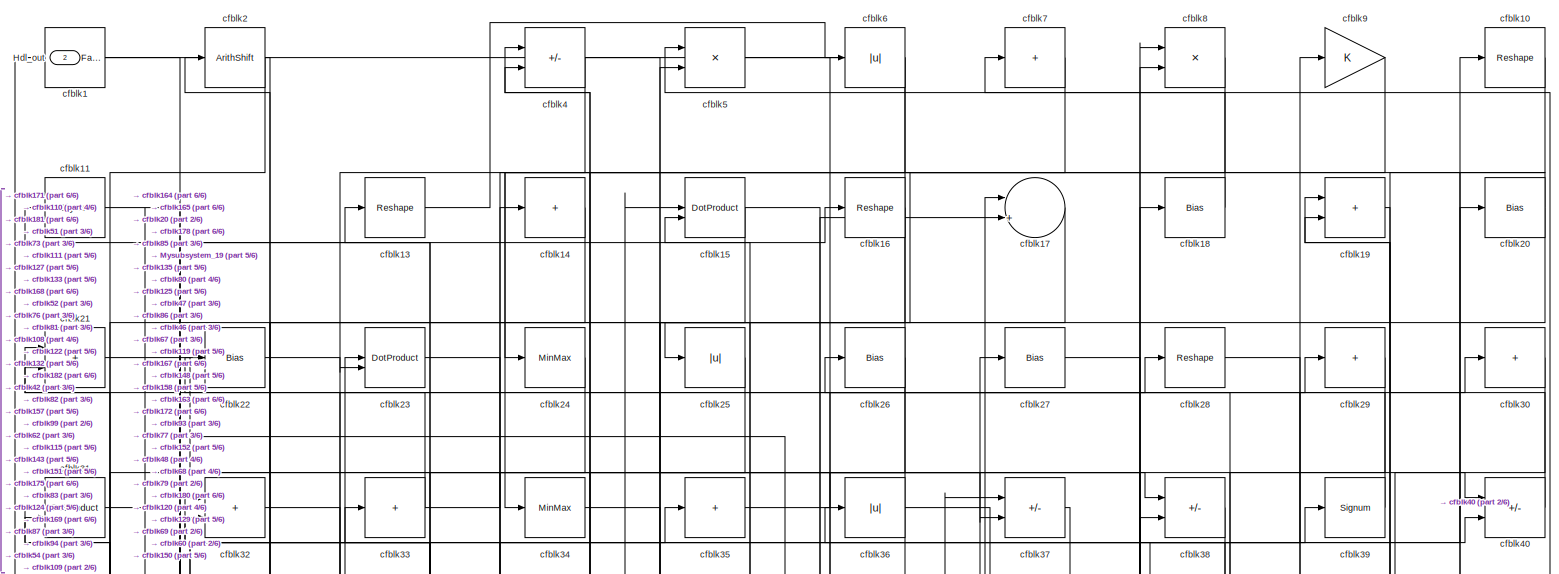
[diagram: root canvas - part 1/6, full width, top band]
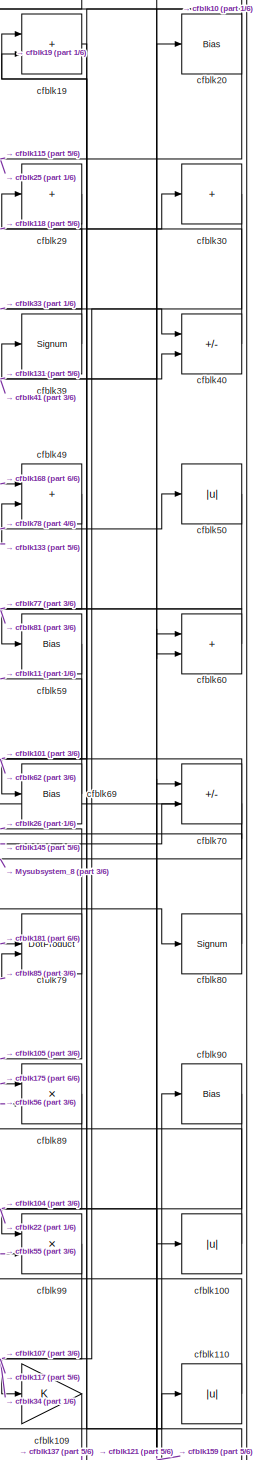
[diagram: root canvas - part 2/6, top right region]
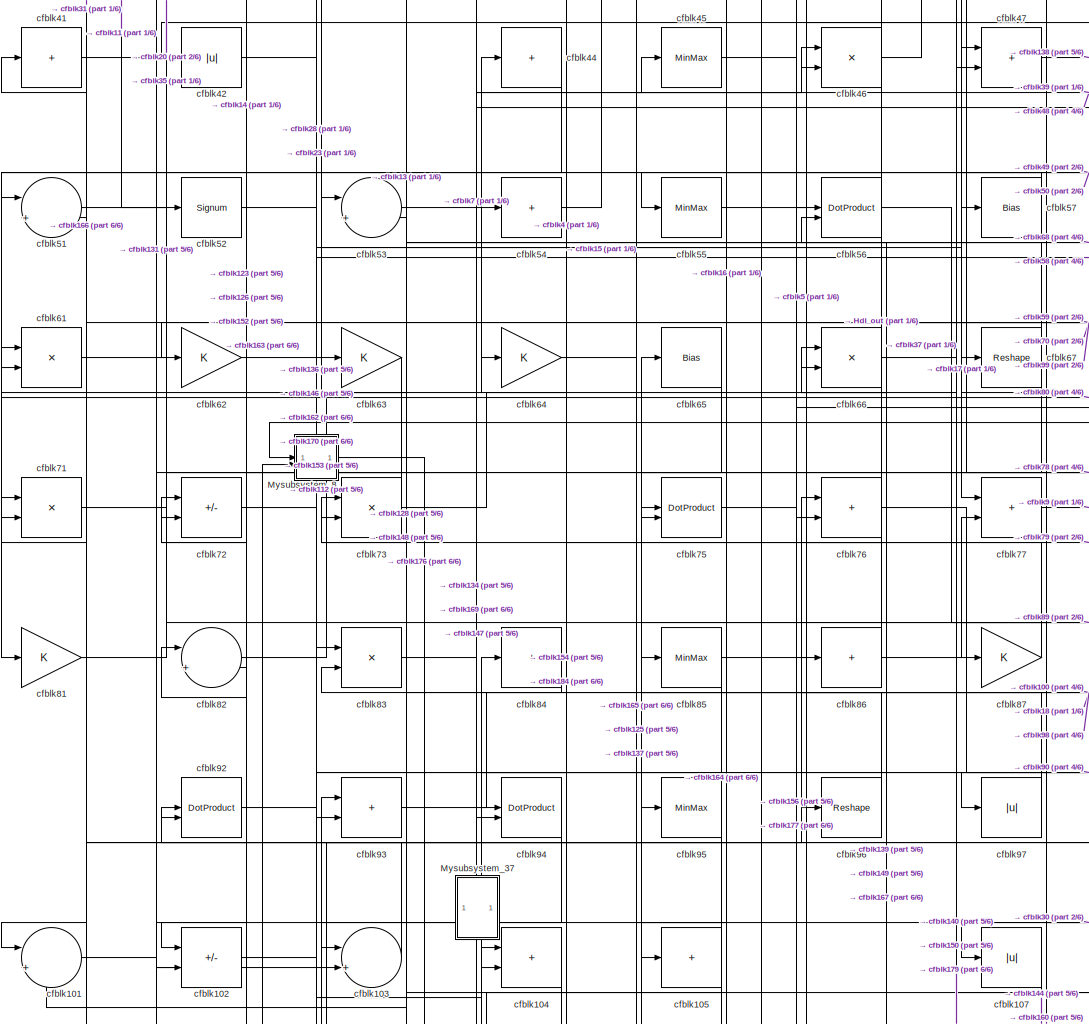
[diagram: root canvas - part 3/6, central region]
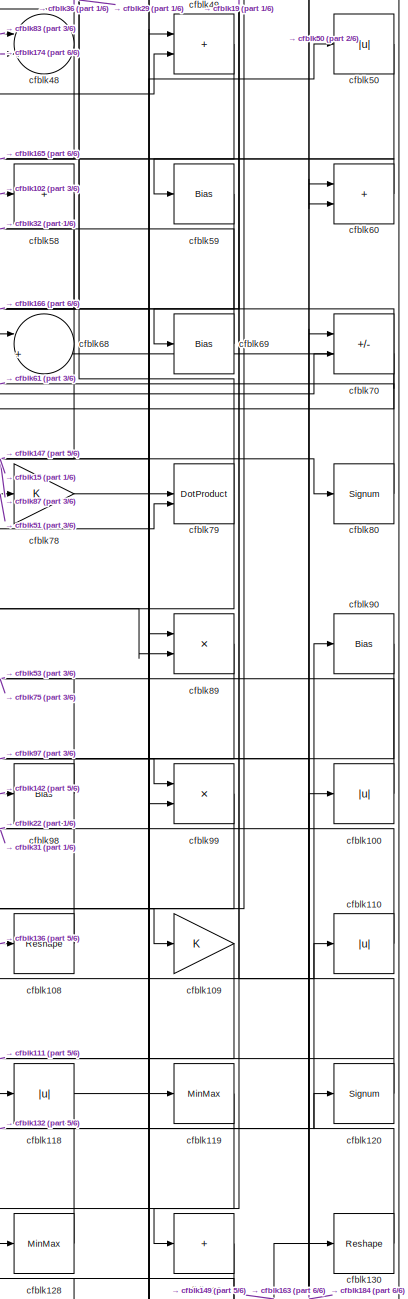
[diagram: root canvas - part 4/6, middle right region]
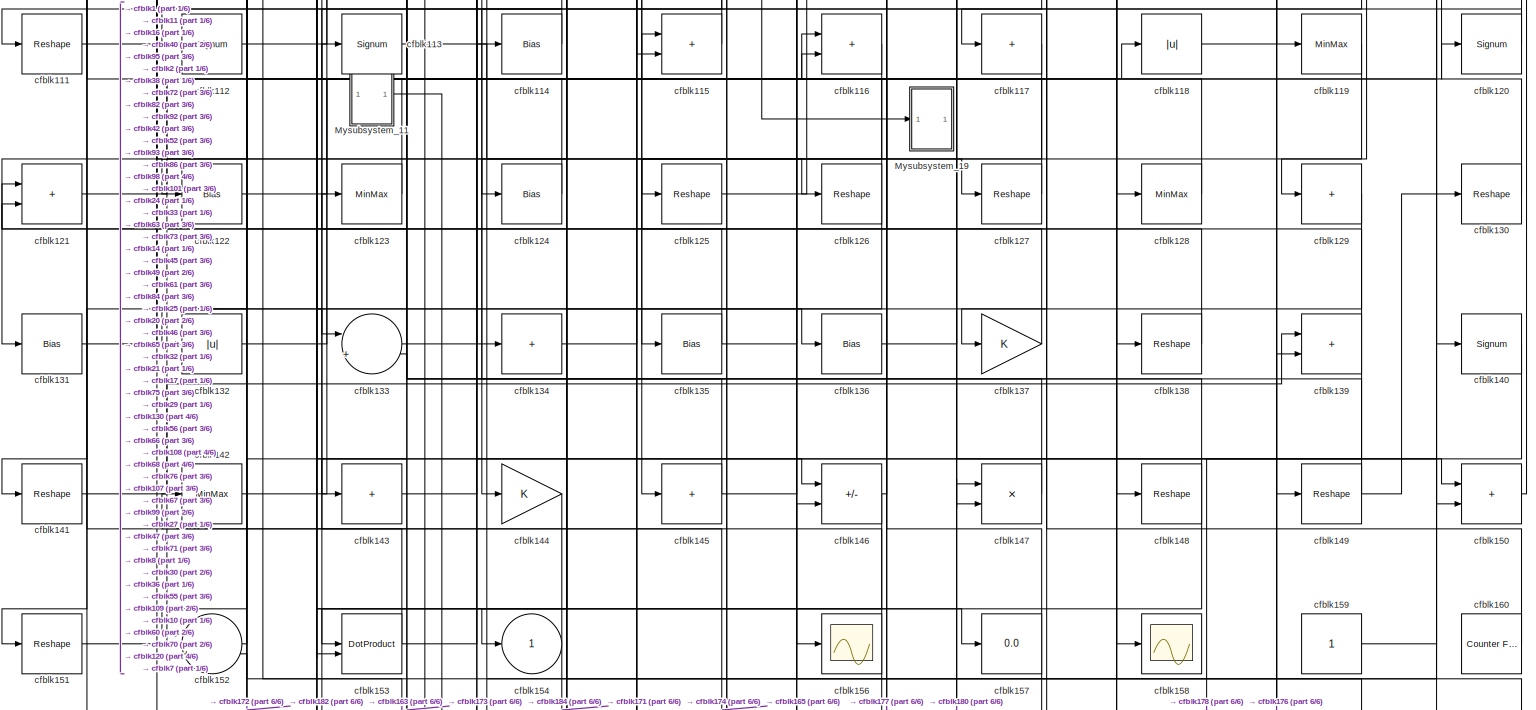
[diagram: root canvas - part 5/6, full width, bottom band]
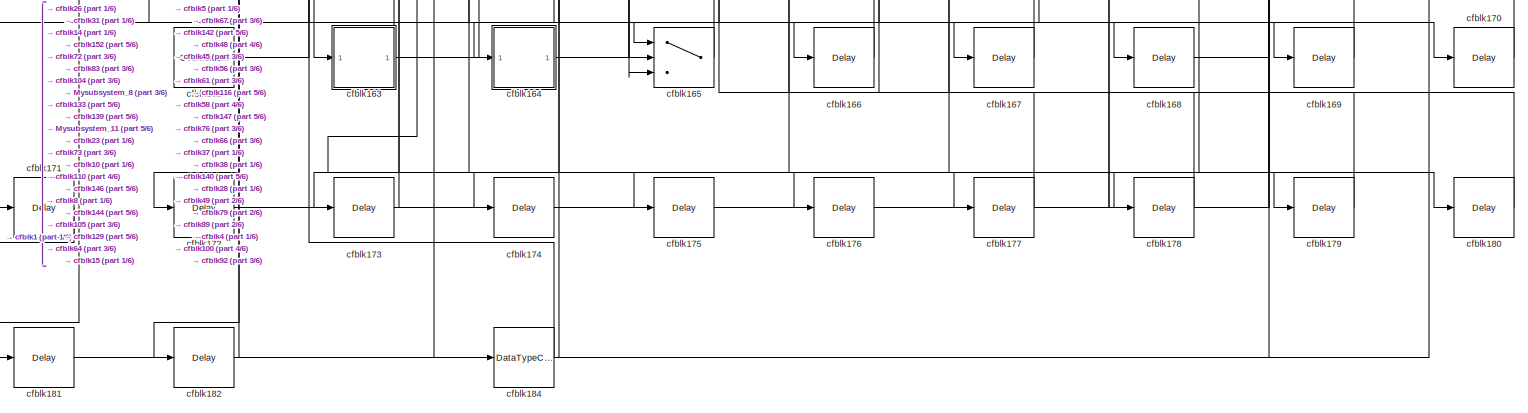
[diagram: root canvas - part 6/6, full width, bottom band]
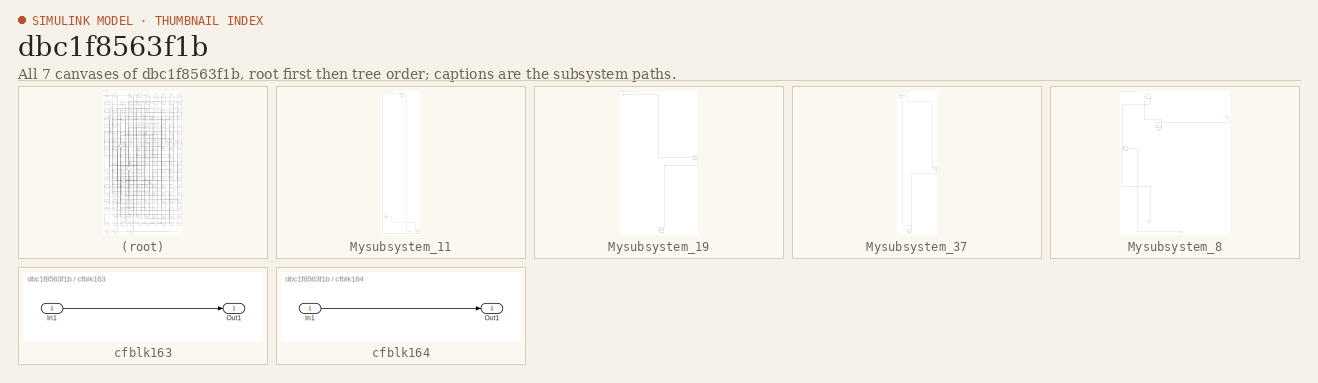
[diagram: thumbnail index - all 7 canvases of the model, root first then tree order]
MODEL slx_dbc1f8563f1b
KIND model
CONFIG AbsTol = auto
CONFIG EnableMultiTasking = off
CONFIG FixedStep = auto
CONFIG MaxStep = auto
CONFIG MinStep = auto
CONFIG RelTol = 1e-3
CONFIG SampleTimeConstraint = Unconstrained
CONFIG SolverName = VariableStepAuto
CONFIG StartTime = 0.0
CONFIG StopTime = 10.0
BLOCK [Outport] Hdl_out
  OutDataTypeStr = uint8
  Port = 2
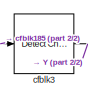
[diagram: Mysubsystem_11 - part 1/2, top center region]
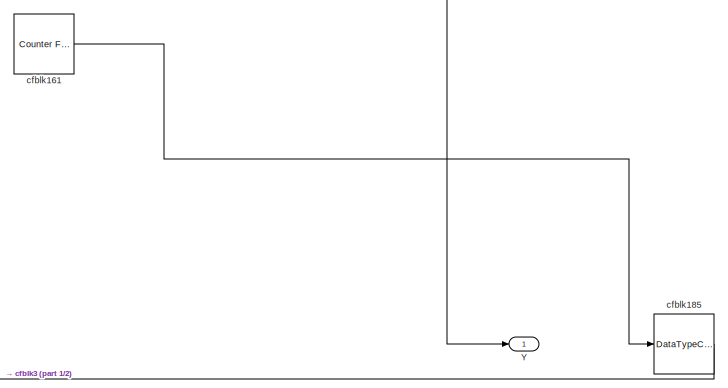
[diagram: Mysubsystem_11 - part 2/2, full width, bottom band]
BLOCK [SubSystem] Mysubsystem_11
  RTWFcnName = Mysubsystem_11
  RTWFcnNameOpts = User specified
  RTWFileNameOpts = Use function name
  RTWSystemCode = Reusable function
  TreatAsAtomicUnit = on
BLOCK [Outport] Mysubsystem_11/Y
BLOCK [Reference] Mysubsystem_11/cfblk161  REF=hdlsllib/Sources/Counter
Free-Running
  SourceBlock = hdlsllib/Sources/Counter\nFree-Running
  SourceType = Counter Free-Running
BLOCK [DataTypeConversion] Mysubsystem_11/cfblk185
  OutDataTypeStr = uint8
  RndMeth = Floor
  SaturateOnIntegerOverflow = off
BLOCK [Reference] Mysubsystem_11/cfblk3  REF=simulink/Logic and Bit
Operations/Detect
Change
  LibrarySourceBlock = hdlsllib/Logic and Bit\nOperations/Detect\nChange
  SourceBlock = simulink/Logic and Bit\nOperations/Detect\nChange
  SourceType = Detect Change
BLOCK [SubSystem] Mysubsystem_19
  RTWFcnName = Mysubsystem_19
  RTWFcnNameOpts = User specified
  RTWFileNameOpts = Use function name
  RTWSystemCode = Reusable function
  TreatAsAtomicUnit = on
BLOCK [Inport] Mysubsystem_19/In1
BLOCK [ToWorkspace] Mysubsystem_19/cfblk155
  MaxDataPoints = inf
  SampleTime = -1
  SaveFormat = Timeseries
  VariableName = simout
BLOCK [MinMax] Mysubsystem_19/cfblk88
BLOCK [SubSystem] Mysubsystem_37
  RTWFcnName = Mysubsystem_37
  RTWFcnNameOpts = User specified
  RTWFileNameOpts = Use function name
  RTWSystemCode = Reusable function
  TreatAsAtomicUnit = on
BLOCK [Signum] Mysubsystem_37/cfblk106
BLOCK [Signum] Mysubsystem_37/cfblk12
BLOCK [Delay] Mysubsystem_37/cfblk183
  InputPortMap = u0
  SampleTime = 1
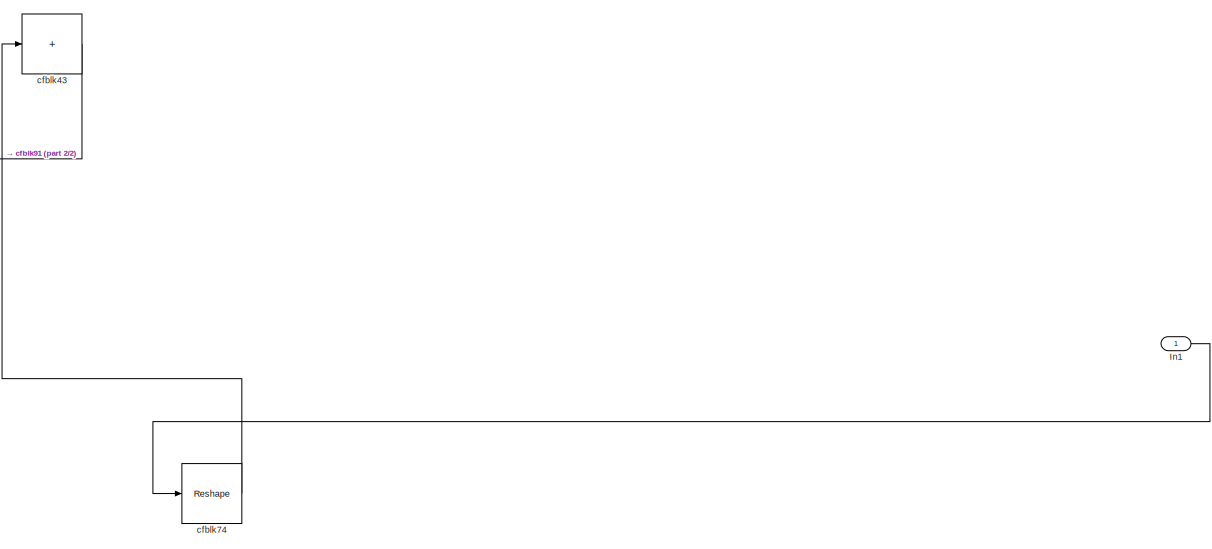
[diagram: Mysubsystem_8 - part 1/2, full width, top band]
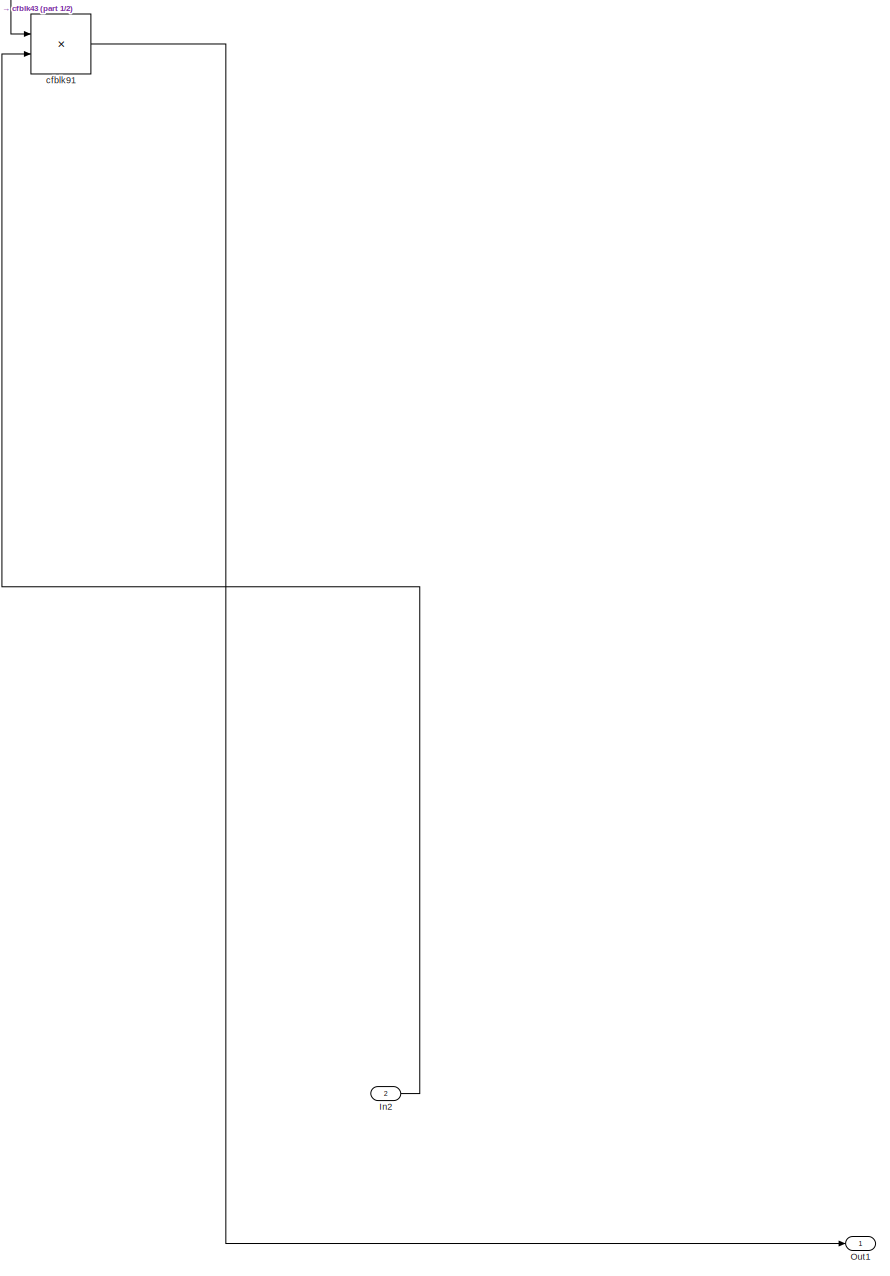
[diagram: Mysubsystem_8 - part 2/2, bottom left region]
BLOCK [SubSystem] Mysubsystem_8
  RTWFcnName = Mysubsystem_8
  RTWFcnNameOpts = User specified
  RTWFileNameOpts = Use function name
  RTWSystemCode = Reusable function
  TreatAsAtomicUnit = on
BLOCK [Inport] Mysubsystem_8/In1
BLOCK [Inport] Mysubsystem_8/In2
  Port = 2
BLOCK [Outport] Mysubsystem_8/Out1
BLOCK [Sum] Mysubsystem_8/cfblk43
  IconShape = rectangular
  Inputs = +
BLOCK [Reshape] Mysubsystem_8/cfblk74
BLOCK [Product] Mysubsystem_8/cfblk91
  Inputs = */
  RndMeth = Zero
  SaturateOnIntegerOverflow = on
BLOCK [Reference] cfblk1  REF=hdlsllib/Logic and Bit
Operations/Detect Fall
Nonpositive
  SourceBlock = hdlsllib/Logic and Bit\nOperations/Detect Fall\nNonpositive
  SourceType = Detect Fall Nonpositive
BLOCK [Reshape] cfblk10
BLOCK [Abs] cfblk100
  OutDataTypeStr = uint8
  SaturateOnIntegerOverflow = off
BLOCK [Sum] cfblk101
  Inputs = |++
  OutDataTypeStr = uint8
BLOCK [Sum] cfblk102
  IconShape = rectangular
  Inputs = +-
  OutDataTypeStr = uint8
BLOCK [Sum] cfblk103
  Inputs = |++
  OutDataTypeStr = uint8
BLOCK [Sum] cfblk104
  IconShape = rectangular
  OutDataTypeStr = uint8
BLOCK [Sum] cfblk105
  IconShape = rectangular
  Inputs = +
  OutDataTypeStr = uint8
BLOCK [Abs] cfblk107
  OutDataTypeStr = uint8
  SaturateOnIntegerOverflow = off
BLOCK [Reshape] cfblk108
BLOCK [Gain] cfblk109
  OutDataTypeStr = uint8
BLOCK [Signum] cfblk11
BLOCK [Abs] cfblk110
  OutDataTypeStr = uint8
  SaturateOnIntegerOverflow = off
BLOCK [Reshape] cfblk111
BLOCK [Signum] cfblk112
BLOCK [Signum] cfblk113
BLOCK [Bias] cfblk114
  Bias = 0.0
  SaturateOnIntegerOverflow = off
BLOCK [Sum] cfblk115
  IconShape = rectangular
  OutDataTypeStr = uint8
BLOCK [Sum] cfblk116
  IconShape = rectangular
  OutDataTypeStr = uint8
BLOCK [Sum] cfblk117
  IconShape = rectangular
  Inputs = +
  OutDataTypeStr = uint8
BLOCK [Abs] cfblk118
  OutDataTypeStr = uint8
  SaturateOnIntegerOverflow = off
BLOCK [MinMax] cfblk119
  OutDataTypeStr = uint8
BLOCK [Signum] cfblk120
BLOCK [Sum] cfblk121
  IconShape = rectangular
  OutDataTypeStr = uint8
BLOCK [Bias] cfblk122
  Bias = 0.0
  SaturateOnIntegerOverflow = off
BLOCK [MinMax] cfblk123
  OutDataTypeStr = uint8
BLOCK [Bias] cfblk124
  Bias = 0.0
  SaturateOnIntegerOverflow = off
BLOCK [Reshape] cfblk125
BLOCK [Reshape] cfblk126
BLOCK [Reshape] cfblk127
BLOCK [MinMax] cfblk128
  OutDataTypeStr = uint8
BLOCK [Sum] cfblk129
  IconShape = rectangular
  Inputs = +
  OutDataTypeStr = uint8
BLOCK [Reshape] cfblk13
BLOCK [Reshape] cfblk130
BLOCK [Bias] cfblk131
  Bias = 0.0
  SaturateOnIntegerOverflow = off
BLOCK [Abs] cfblk132
  OutDataTypeStr = uint8
  SaturateOnIntegerOverflow = off
BLOCK [Sum] cfblk133
  Inputs = |++
  OutDataTypeStr = uint8
BLOCK [Sum] cfblk134
  IconShape = rectangular
  Inputs = +
  OutDataTypeStr = uint8
BLOCK [Bias] cfblk135
  Bias = 0.0
  SaturateOnIntegerOverflow = off
BLOCK [Bias] cfblk136
  Bias = 0.0
  SaturateOnIntegerOverflow = off
BLOCK [Gain] cfblk137
  OutDataTypeStr = uint8
BLOCK [Reshape] cfblk138
BLOCK [Sum] cfblk139
  IconShape = rectangular
  OutDataTypeStr = uint8
BLOCK [Sum] cfblk14
  IconShape = rectangular
  Inputs = +
  OutDataTypeStr = uint8
BLOCK [Signum] cfblk140
BLOCK [Reshape] cfblk141
BLOCK [MinMax] cfblk142
  OutDataTypeStr = uint8
BLOCK [Sum] cfblk143
  IconShape = rectangular
  Inputs = +
  OutDataTypeStr = uint8
BLOCK [Gain] cfblk144
  OutDataTypeStr = uint8
BLOCK [Sum] cfblk145
  IconShape = rectangular
  Inputs = +
  OutDataTypeStr = uint8
BLOCK [Sum] cfblk146
  IconShape = rectangular
  Inputs = +-
  OutDataTypeStr = uint8
BLOCK [Product] cfblk147
  Inputs = */
  OutDataTypeStr = uint8
  RndMeth = Zero
  SaturateOnIntegerOverflow = on
BLOCK [Reshape] cfblk148
BLOCK [Reshape] cfblk149
BLOCK [DotProduct] cfblk15
  OutDataTypeStr = uint8
BLOCK [Sum] cfblk150
  IconShape = rectangular
  OutDataTypeStr = uint8
BLOCK [Reshape] cfblk151
BLOCK [Sum] cfblk152
  Inputs = |++
  OutDataTypeStr = uint8
BLOCK [DotProduct] cfblk153
  OutDataTypeStr = uint8
BLOCK [Outport] cfblk154
  OutDataTypeStr = uint8
  VectorParamsAs1DForOutWhenUnconnected = off
BLOCK [Scope] cfblk156
  Floating = off
  NumInputPorts = 1
  ScopeSpecificationString = Simulink.scopes.TimeScopeBlockCfg('CurrentConfiguration', extmgr.ConfigurationSet(extmgr.Configuration('Core','General UI',true),extmgr.Configuration('Core','Source UI',true),extmgr.Configuration('Sources','WiredSimulink',true,'DataLoggingVariableName','ScopeData2','DataLoggingSaveFormat','Array','DataLoggingLimitDataPoints',true,'DataLoggingDecimation','1'),extmgr.Configuration('Visuals','Time Do...<+868ch>
BLOCK [Display] cfblk157
  Decimation = 1
BLOCK [Scope] cfblk158
  Floating = off
  NumInputPorts = 1
  ScopeSpecificationString = Simulink.scopes.TimeScopeBlockCfg('CurrentConfiguration', extmgr.ConfigurationSet(extmgr.Configuration('Core','General UI',true),extmgr.Configuration('Core','Source UI',true),extmgr.Configuration('Sources','WiredSimulink',true,'DataLoggingVariableName','ScopeData2','DataLoggingSaveFormat','Array','DataLoggingLimitDataPoints',true,'DataLoggingDecimation','1'),extmgr.Configuration('Visuals','Time Do...<+868ch>
BLOCK [Constant] cfblk159
  OutDataTypeStr = uint8
  SampleTime = -1
BLOCK [Reshape] cfblk16
BLOCK [Reference] cfblk160  REF=hdlsllib/Sources/Counter
Free-Running
  SourceBlock = hdlsllib/Sources/Counter\nFree-Running
  SourceType = Counter Free-Running
BLOCK [Reference] cfblk162  REF=hdlsllib/Sources/Counter
Limited
  SourceBlock = hdlsllib/Sources/Counter\nLimited
  SourceType = Counter Limited
BLOCK [SubSystem] cfblk163
  LibrarySourceBlock = hdlsllib/Ports &\nSubsystems/Subsystem
BLOCK [Inport] cfblk163/In1
BLOCK [Outport] cfblk163/Out1
BLOCK [SubSystem] cfblk164
  LibrarySourceBlock = hdlsllib/Ports &\nSubsystems/Subsystem
BLOCK [Inport] cfblk164/In1
BLOCK [Outport] cfblk164/Out1
BLOCK [Switch] cfblk165
  InputSameDT = off
  OutDataTypeStr = uint8
  SaturateOnIntegerOverflow = off
BLOCK [Delay] cfblk166
  InputPortMap = u0
  SampleTime = 1
BLOCK [Delay] cfblk167
  InputPortMap = u0
  SampleTime = 1
BLOCK [Delay] cfblk168
  InputPortMap = u0
  SampleTime = 1
BLOCK [Delay] cfblk169
  InputPortMap = u0
  SampleTime = 1
BLOCK [Sum] cfblk17
  Inputs = |++
  OutDataTypeStr = uint8
BLOCK [Delay] cfblk170
  InputPortMap = u0
  SampleTime = 1
BLOCK [Delay] cfblk171
  InputPortMap = u0
  SampleTime = 1
BLOCK [Delay] cfblk172
  InputPortMap = u0
  SampleTime = 1
BLOCK [Delay] cfblk173
  InputPortMap = u0
  SampleTime = 1
BLOCK [Delay] cfblk174
  InputPortMap = u0
  SampleTime = 1
BLOCK [Delay] cfblk175
  InputPortMap = u0
  SampleTime = 1
BLOCK [Delay] cfblk176
  InputPortMap = u0
  SampleTime = 1
BLOCK [Delay] cfblk177
  InputPortMap = u0
  SampleTime = 1
BLOCK [Delay] cfblk178
  InputPortMap = u0
  SampleTime = 1
BLOCK [Delay] cfblk179
  InputPortMap = u0
  SampleTime = 1
BLOCK [Bias] cfblk18
  Bias = 0.0
  SaturateOnIntegerOverflow = off
BLOCK [Delay] cfblk180
  InputPortMap = u0
  SampleTime = 1
BLOCK [Delay] cfblk181
  InputPortMap = u0
  SampleTime = 1
BLOCK [Delay] cfblk182
  InputPortMap = u0
  SampleTime = 1
BLOCK [DataTypeConversion] cfblk184
  OutDataTypeStr = uint8
  RndMeth = Floor
  SaturateOnIntegerOverflow = off
BLOCK [Sum] cfblk19
  IconShape = rectangular
  OutDataTypeStr = uint8
BLOCK [ArithShift] cfblk2
  BitShiftNumber = 8
  InputPortMap = u0
BLOCK [Bias] cfblk20
  Bias = 0.0
  SaturateOnIntegerOverflow = off
BLOCK [Sum] cfblk21
  IconShape = rectangular
  OutDataTypeStr = uint8
BLOCK [Bias] cfblk22
  Bias = 0.0
  SaturateOnIntegerOverflow = off
BLOCK [DotProduct] cfblk23
  OutDataTypeStr = uint8
BLOCK [MinMax] cfblk24
  OutDataTypeStr = uint8
BLOCK [Abs] cfblk25
  OutDataTypeStr = uint8
  SaturateOnIntegerOverflow = off
BLOCK [Bias] cfblk26
  Bias = 0.0
  SaturateOnIntegerOverflow = off
BLOCK [Bias] cfblk27
  Bias = 0.0
  SaturateOnIntegerOverflow = off
BLOCK [Reshape] cfblk28
BLOCK [Sum] cfblk29
  IconShape = rectangular
  Inputs = +
  OutDataTypeStr = uint8
BLOCK [Sum] cfblk30
  IconShape = rectangular
  Inputs = +
  OutDataTypeStr = uint8
BLOCK [DotProduct] cfblk31
  OutDataTypeStr = uint8
BLOCK [Sum] cfblk32
  IconShape = rectangular
  OutDataTypeStr = uint8
BLOCK [Sum] cfblk33
  IconShape = rectangular
  Inputs = +
  OutDataTypeStr = uint8
BLOCK [MinMax] cfblk34
  OutDataTypeStr = uint8
BLOCK [Sum] cfblk35
  IconShape = rectangular
  Inputs = +
  OutDataTypeStr = uint8
BLOCK [Abs] cfblk36
  OutDataTypeStr = uint8
  SaturateOnIntegerOverflow = off
BLOCK [Sum] cfblk37
  IconShape = rectangular
  Inputs = +-
  OutDataTypeStr = uint8
BLOCK [Sum] cfblk38
  IconShape = rectangular
  Inputs = +-
  OutDataTypeStr = uint8
BLOCK [Signum] cfblk39
BLOCK [Sum] cfblk4
  IconShape = rectangular
  Inputs = +-
  OutDataTypeStr = uint8
BLOCK [Sum] cfblk40
  IconShape = rectangular
  Inputs = +-
  OutDataTypeStr = uint8
BLOCK [Sum] cfblk41
  IconShape = rectangular
  Inputs = +
  OutDataTypeStr = uint8
BLOCK [Abs] cfblk42
  OutDataTypeStr = uint8
  SaturateOnIntegerOverflow = off
BLOCK [Sum] cfblk44
  IconShape = rectangular
  Inputs = +
  OutDataTypeStr = uint8
BLOCK [MinMax] cfblk45
  OutDataTypeStr = uint8
BLOCK [Product] cfblk46
  Inputs = */
  OutDataTypeStr = uint8
  RndMeth = Zero
  SaturateOnIntegerOverflow = on
BLOCK [Sum] cfblk47
  IconShape = rectangular
  OutDataTypeStr = uint8
BLOCK [Sum] cfblk48
  Inputs = |++
  OutDataTypeStr = uint8
BLOCK [Sum] cfblk49
  IconShape = rectangular
  OutDataTypeStr = uint8
BLOCK [Product] cfblk5
  Inputs = */
  OutDataTypeStr = uint8
  RndMeth = Zero
  SaturateOnIntegerOverflow = on
BLOCK [Abs] cfblk50
  OutDataTypeStr = uint8
  SaturateOnIntegerOverflow = off
BLOCK [Sum] cfblk51
  Inputs = |++
  OutDataTypeStr = uint8
BLOCK [Signum] cfblk52
BLOCK [Sum] cfblk53
  Inputs = |++
  OutDataTypeStr = uint8
BLOCK [Sum] cfblk54
  IconShape = rectangular
  Inputs = +
  OutDataTypeStr = uint8
BLOCK [MinMax] cfblk55
  OutDataTypeStr = uint8
BLOCK [DotProduct] cfblk56
  OutDataTypeStr = uint8
BLOCK [Bias] cfblk57
  Bias = 0.0
  SaturateOnIntegerOverflow = off
BLOCK [Sum] cfblk58
  IconShape = rectangular
  Inputs = +
  OutDataTypeStr = uint8
BLOCK [Bias] cfblk59
  Bias = 0.0
  SaturateOnIntegerOverflow = off
BLOCK [Abs] cfblk6
  OutDataTypeStr = uint8
  SaturateOnIntegerOverflow = off
BLOCK [Sum] cfblk60
  IconShape = rectangular
  OutDataTypeStr = uint8
BLOCK [Product] cfblk61
  Inputs = */
  OutDataTypeStr = uint8
  RndMeth = Zero
  SaturateOnIntegerOverflow = on
BLOCK [Gain] cfblk62
  OutDataTypeStr = uint8
BLOCK [Gain] cfblk63
  OutDataTypeStr = uint8
BLOCK [Gain] cfblk64
  OutDataTypeStr = uint8
BLOCK [Bias] cfblk65
  Bias = 0.0
  SaturateOnIntegerOverflow = off
BLOCK [Product] cfblk66
  Inputs = */
  OutDataTypeStr = uint8
  RndMeth = Zero
  SaturateOnIntegerOverflow = on
BLOCK [Reshape] cfblk67
BLOCK [Sum] cfblk68
  Inputs = |++
  OutDataTypeStr = uint8
BLOCK [Bias] cfblk69
  Bias = 0.0
  SaturateOnIntegerOverflow = off
BLOCK [Sum] cfblk7
  IconShape = rectangular
  Inputs = +
  OutDataTypeStr = uint8
BLOCK [Sum] cfblk70
  IconShape = rectangular
  Inputs = +-
  OutDataTypeStr = uint8
BLOCK [Product] cfblk71
  Inputs = */
  OutDataTypeStr = uint8
  RndMeth = Zero
  SaturateOnIntegerOverflow = on
BLOCK [Sum] cfblk72
  IconShape = rectangular
  Inputs = +-
  OutDataTypeStr = uint8
BLOCK [Product] cfblk73
  Inputs = */
  OutDataTypeStr = uint8
  RndMeth = Zero
  SaturateOnIntegerOverflow = on
BLOCK [DotProduct] cfblk75
  OutDataTypeStr = uint8
BLOCK [Sum] cfblk76
  IconShape = rectangular
  OutDataTypeStr = uint8
BLOCK [Sum] cfblk77
  IconShape = rectangular
  OutDataTypeStr = uint8
BLOCK [Gain] cfblk78
  OutDataTypeStr = uint8
BLOCK [DotProduct] cfblk79
  OutDataTypeStr = uint8
BLOCK [Product] cfblk8
  Inputs = */
  OutDataTypeStr = uint8
  RndMeth = Zero
  SaturateOnIntegerOverflow = on
BLOCK [Signum] cfblk80
BLOCK [Gain] cfblk81
  OutDataTypeStr = uint8
BLOCK [Sum] cfblk82
  Inputs = |++
  OutDataTypeStr = uint8
BLOCK [Product] cfblk83
  Inputs = */
  OutDataTypeStr = uint8
  RndMeth = Zero
  SaturateOnIntegerOverflow = on
BLOCK [Sum] cfblk84
  IconShape = rectangular
  Inputs = +
  OutDataTypeStr = uint8
BLOCK [MinMax] cfblk85
  OutDataTypeStr = uint8
BLOCK [Sum] cfblk86
  IconShape = rectangular
  Inputs = +
  OutDataTypeStr = uint8
BLOCK [Gain] cfblk87
  OutDataTypeStr = uint8
BLOCK [Product] cfblk89
  Inputs = */
  OutDataTypeStr = uint8
  RndMeth = Zero
  SaturateOnIntegerOverflow = on
BLOCK [Gain] cfblk9
  OutDataTypeStr = uint8
BLOCK [Bias] cfblk90
  Bias = 0.0
  SaturateOnIntegerOverflow = off
BLOCK [DotProduct] cfblk92
  OutDataTypeStr = uint8
BLOCK [Sum] cfblk93
  IconShape = rectangular
  OutDataTypeStr = uint8
BLOCK [DotProduct] cfblk94
  OutDataTypeStr = uint8
BLOCK [MinMax] cfblk95
  OutDataTypeStr = uint8
BLOCK [Reshape] cfblk96
BLOCK [Abs] cfblk97
  OutDataTypeStr = uint8
  SaturateOnIntegerOverflow = off
BLOCK [Bias] cfblk98
  Bias = 0.0
  SaturateOnIntegerOverflow = off
BLOCK [Product] cfblk99
  Inputs = */
  OutDataTypeStr = uint8
  RndMeth = Zero
  SaturateOnIntegerOverflow = on
LINE Mysubsystem_11/cfblk161:1 -> Mysubsystem_11/cfblk185:1
LINE Mysubsystem_11/cfblk185:1 -> Mysubsystem_11/cfblk3:1
LINE Mysubsystem_11/cfblk3:1 -> Mysubsystem_11/Y:1
LINE Mysubsystem_11:1 -> cfblk184:1
LINE Mysubsystem_19/In1:1 -> Mysubsystem_19/cfblk88:1
LINE Mysubsystem_19/cfblk88:1 -> Mysubsystem_19/cfblk155:1
LINE Mysubsystem_37/cfblk106:1 -> Mysubsystem_37/cfblk183:1
LINE Mysubsystem_37/cfblk12:1 -> Mysubsystem_37/cfblk106:1
LINE Mysubsystem_37/cfblk183:1 -> Mysubsystem_37/cfblk12:1
LINE Mysubsystem_8/In1:1 -> Mysubsystem_8/cfblk74:1
LINE Mysubsystem_8/In2:1 -> Mysubsystem_8/cfblk91:2
LINE Mysubsystem_8/cfblk43:1 -> Mysubsystem_8/cfblk91:1
LINE Mysubsystem_8/cfblk74:1 -> Mysubsystem_8/cfblk43:1
LINE Mysubsystem_8/cfblk91:1 -> Mysubsystem_8/Out1:1
LINE Mysubsystem_8:1 -> cfblk176:1
LINE cfblk100:1 -> cfblk53:2
LINE cfblk101:1 -> cfblk103:2
NET cfblk102:1 -> cfblk58:1, cfblk96:1
LINE cfblk103:1 -> cfblk71:2
LINE cfblk104:1 -> cfblk163:1
NET cfblk105:1 -> cfblk164:1, cfblk41:1
LINE cfblk107:1 -> cfblk144:1
LINE cfblk108:1 -> cfblk22:1
LINE cfblk109:1 -> cfblk137:1
NET cfblk10:1 -> cfblk129:1, cfblk60:2
LINE cfblk110:1 -> cfblk31:1
LINE cfblk111:1 -> cfblk16:1
LINE cfblk112:1 -> cfblk86:1
LINE cfblk113:1 -> cfblk126:1
LINE cfblk114:1 -> cfblk112:1
LINE cfblk115:1 -> cfblk32:1
LINE cfblk116:1 -> cfblk131:1
LINE cfblk117:1 -> cfblk135:1
LINE cfblk118:1 -> cfblk30:1
LINE cfblk119:1 -> cfblk145:1
NET cfblk11:1 -> cfblk127:1, cfblk52:1, cfblk76:2
NET cfblk120:1 -> cfblk111:1, cfblk19:2
LINE cfblk121:1 -> cfblk60:1
NET cfblk122:1 -> cfblk27:1, cfblk8:1
LINE cfblk123:1 -> cfblk72:2
LINE cfblk124:1 -> cfblk33:1
LINE cfblk125:1 -> cfblk29:1
NET cfblk126:1 -> cfblk141:1, cfblk82:1
LINE cfblk127:1 -> cfblk21:1
NET cfblk128:1 -> cfblk118:1, cfblk63:1
LINE cfblk129:1 -> cfblk174:1
LINE cfblk130:1 -> cfblk90:1
NET cfblk131:1 -> cfblk40:2, cfblk95:1
LINE cfblk132:1 -> cfblk120:1
LINE cfblk133:1 -> cfblk49:2
LINE cfblk134:1 -> cfblk46:1
NET cfblk135:1 -> cfblk121:1, cfblk17:2
LINE cfblk136:1 -> cfblk108:1
LINE cfblk137:1 -> cfblk65:1
LINE cfblk138:1 -> cfblk72:1
NET cfblk139:1 -> cfblk123:1, cfblk172:1, cfblk173:1, cfblk56:2
LINE cfblk13:1 -> cfblk6:1
LINE cfblk140:1 -> cfblk178:1
LINE cfblk141:1 -> cfblk139:1
NET cfblk142:1 -> cfblk115:1, cfblk98:1
NET cfblk143:1 -> cfblk114:1, cfblk150:1
LINE cfblk144:1 -> cfblk171:1
NET cfblk145:1 -> cfblk113:1, cfblk121:2, cfblk70:2
NET cfblk146:1 -> cfblk116:1, cfblk153:1
LINE cfblk147:1 -> cfblk84:1
NET cfblk148:1 -> cfblk153:2, cfblk73:1
NET cfblk149:1 -> cfblk101:2, cfblk130:1, cfblk66:1
NET cfblk14:1 -> cfblk182:1, cfblk42:1, cfblk82:2
LINE cfblk150:1 -> cfblk7:1
LINE cfblk151:1 -> cfblk14:1
LINE cfblk152:1 -> cfblk92:1
NET cfblk153:1 -> cfblk45:1, cfblk93:1
LINE cfblk159:1 -> cfblk70:1
NET cfblk15:1 -> cfblk165:3, cfblk80:1
LINE cfblk160:1 -> cfblk67:1
LINE cfblk162:1 -> cfblk104:2
LINE cfblk163/In1:1 -> cfblk163/Out1:1
NET cfblk163:1 -> Mysubsystem_8:2, cfblk10:1, cfblk110:1, cfblk146:2, cfblk8:2
LINE cfblk164/In1:1 -> cfblk164/Out1:1
LINE cfblk164:1 -> cfblk5:2
LINE cfblk165:1 -> cfblk142:1
LINE cfblk166:1 -> cfblk61:2
LINE cfblk167:1 -> cfblk66:2
LINE cfblk168:1 -> cfblk49:1
LINE cfblk169:1 -> cfblk4:2
NET cfblk16:1 -> cfblk51:2, cfblk85:1
LINE cfblk170:1 -> cfblk92:2
LINE cfblk171:1 -> cfblk1:1
LINE cfblk172:1 -> cfblk38:2
LINE cfblk173:1 -> cfblk133:2
LINE cfblk174:1 -> cfblk48:2
LINE cfblk175:1 -> cfblk89:1
LINE cfblk176:1 -> cfblk139:2
LINE cfblk177:1 -> cfblk116:2
LINE cfblk178:1 -> cfblk15:2
LINE cfblk179:1 -> cfblk56:1
LINE cfblk17:1 -> cfblk122:1
LINE cfblk180:1 -> cfblk147:1
LINE cfblk181:1 -> cfblk79:1
LINE cfblk182:1 -> cfblk152:2
NET cfblk184:1 -> cfblk100:1, cfblk64:1, cfblk83:1
LINE cfblk18:1 -> cfblk5:1
LINE cfblk19:1 -> cfblk69:1
LINE cfblk1:1 -> cfblk133:1
NET cfblk20:1 -> cfblk115:2, cfblk25:1
NET cfblk21:1 -> Mysubsystem_19:1, cfblk148:1
LINE cfblk22:1 -> cfblk99:1
LINE cfblk23:1 -> cfblk175:1
LINE cfblk24:1 -> cfblk143:1
LINE cfblk25:1 -> cfblk124:1
LINE cfblk26:1 -> cfblk181:1
LINE cfblk27:1 -> cfblk158:1
LINE cfblk28:1 -> cfblk180:1
LINE cfblk29:1 -> cfblk68:1
NET cfblk2:1 -> cfblk132:1, cfblk151:1
LINE cfblk30:1 -> cfblk107:1
LINE cfblk31:1 -> cfblk168:1
LINE cfblk32:1 -> cfblk157:1
NET cfblk33:1 -> cfblk21:2, cfblk40:1
LINE cfblk34:1 -> cfblk109:1
LINE cfblk35:1 -> cfblk38:1
LINE cfblk36:1 -> cfblk119:1
LINE cfblk37:1 -> cfblk167:1
LINE cfblk38:1 -> cfblk152:1
LINE cfblk39:1 -> cfblk2:1
LINE cfblk40:1 -> cfblk19:1
LINE cfblk41:1 -> cfblk20:1
LINE cfblk42:1 -> cfblk146:1
LINE cfblk44:1 -> cfblk71:1
LINE cfblk45:1 -> cfblk177:1
NET cfblk46:1 -> cfblk37:1, cfblk51:1
LINE cfblk47:1 -> cfblk138:1
NET cfblk48:1 -> cfblk165:1, cfblk36:1
LINE cfblk49:1 -> cfblk81:1
NET cfblk4:1 -> cfblk24:1, cfblk37:2
LINE cfblk50:1 -> cfblk77:1
LINE cfblk51:1 -> cfblk78:1
NET cfblk52:1 -> cfblk136:1, cfblk28:1
LINE cfblk53:1 -> cfblk54:1
LINE cfblk54:1 -> cfblk15:1
NET cfblk55:1 -> cfblk149:1, cfblk99:2
LINE cfblk56:1 -> cfblk89:2
LINE cfblk57:1 -> cfblk55:1
LINE cfblk58:1 -> cfblk166:1
LINE cfblk59:1 -> cfblk101:1
LINE cfblk5:1 -> cfblk47:1
LINE cfblk60:1 -> cfblk59:1
LINE cfblk61:1 -> cfblk134:1
LINE cfblk62:1 -> cfblk23:1
LINE cfblk63:1 -> cfblk102:1
LINE cfblk64:1 -> cfblk46:2
LINE cfblk65:1 -> cfblk125:1
NET cfblk66:1 -> cfblk150:2, cfblk53:1
NET cfblk67:1 -> cfblk13:1, cfblk165:2, cfblk17:1
NET cfblk68:1 -> cfblk147:2, cfblk32:2, cfblk87:1
LINE cfblk69:1 -> cfblk11:1
LINE cfblk6:1 -> cfblk34:1
NET cfblk70:1 -> Mysubsystem_8:1, cfblk62:1
LINE cfblk71:1 -> cfblk128:1
LINE cfblk72:1 -> cfblk170:1
NET cfblk73:1 -> cfblk169:1, cfblk31:2, cfblk47:2
LINE cfblk75:1 -> cfblk156:1
NET cfblk76:1 -> cfblk140:1, cfblk179:1
LINE cfblk77:1 -> cfblk9:1
LINE cfblk78:1 -> cfblk50:1
NET cfblk79:1 -> cfblk105:1, cfblk26:1
LINE cfblk7:1 -> cfblk94:2
NET cfblk80:1 -> cfblk61:1, cfblk68:2
LINE cfblk81:1 -> cfblk35:1
LINE cfblk82:1 -> cfblk44:1
NET cfblk83:1 -> cfblk39:1, cfblk48:1
NET cfblk84:1 -> cfblk154:1, cfblk83:2
NET cfblk85:1 -> cfblk79:2, cfblk93:2
NET cfblk86:1 -> Hdl_out:1, cfblk73:2, cfblk77:2
LINE cfblk87:1 -> cfblk4:1
LINE cfblk89:1 -> cfblk104:1
LINE cfblk8:1 -> cfblk23:2
LINE cfblk90:1 -> cfblk97:1
LINE cfblk92:1 -> cfblk57:1
LINE cfblk93:1 -> cfblk18:1
LINE cfblk94:1 -> cfblk102:2
LINE cfblk95:1 -> cfblk103:1
LINE cfblk96:1 -> cfblk75:2
LINE cfblk97:1 -> cfblk76:1
LINE cfblk98:1 -> cfblk75:1
LINE cfblk99:1 -> cfblk117:1
LINE cfblk9:1 -> cfblk94:1
note: NET lines group one-source signal fan-out (src -> all destinations, sorted); 1:1 wires keep LINE
